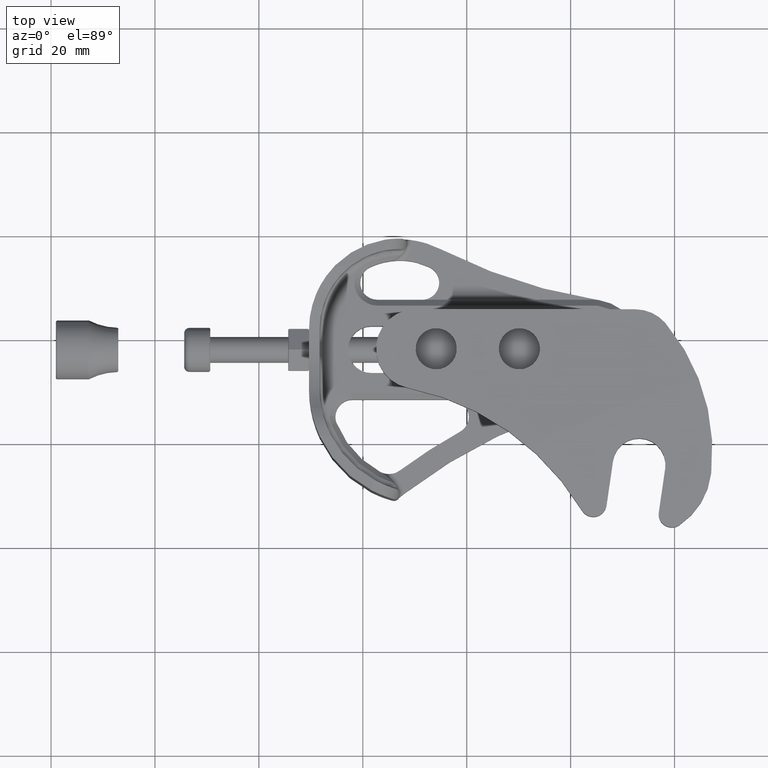
[diagram: clean part render]
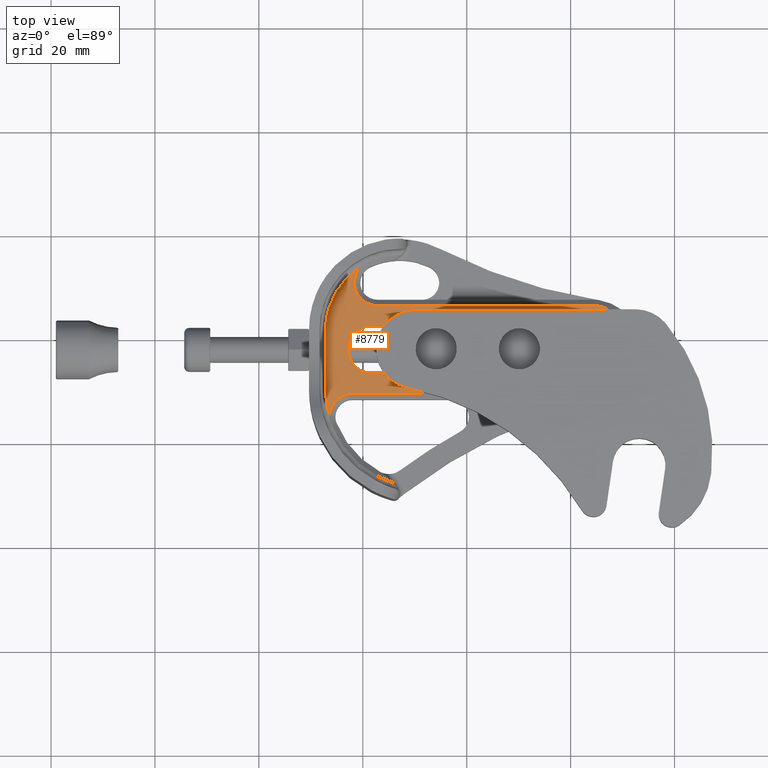
[diagram: same view with one face highlighted and labeled with its STEP entity id]
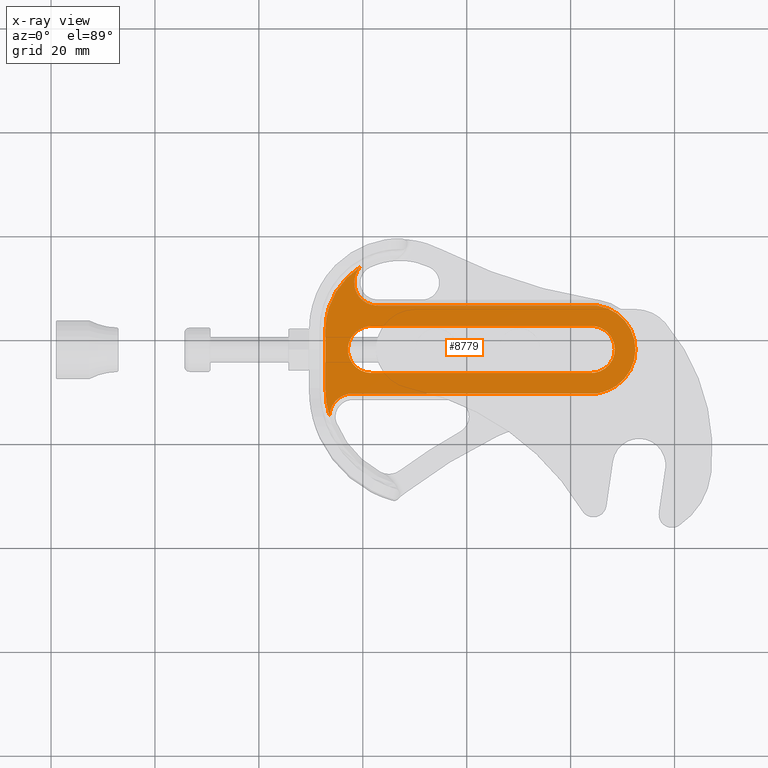
[diagram: x-ray of the same camera — body ghosted, the highlighted face saturated]
A machine part, top view. The second image highlights one B-rep face of the part: STEP entity #8779.
The next image is the same camera in x-ray: the body ghosted, the highlighted face saturated — about 0% of this face is hidden behind the body in this view.
In plain terms, the highlighted planar face has unit normal (0, 0, 1).
Its self-contained STEP definition (entity closure, byte-faithful):
#521 = EDGE_LOOP ( 'NONE', ( #4981, #4983, #4985, #4987, #4990, #4991, #4993, #4995, #4997, #4999 ) ) ;
#572 = EDGE_CURVE ( 'NONE', #1851, #1849, #1130, .T. ) ;
#792 = EDGE_CURVE ( 'NONE', #7277, #7278, #1935, .T. ) ;
#1128 = VECTOR ( 'NONE', #7846, 39.37007874015748100 ) ;
#1130 = LINE ( 'NONE', #7845, #1128 ) ;
#1234 = VERTEX_POINT ( 'NONE', #8289 ) ;
#1236 = VERTEX_POINT ( 'NONE', #8290 ) ;
#1237 = VERTEX_POINT ( 'NONE', #8288 ) ;
#1503 = EDGE_CURVE ( 'NONE', #1657, #1234, #1970, .T. ) ;
#1509 = EDGE_CURVE ( 'NONE', #1237, #7302, #1971, .T. ) ;
#1511 = EDGE_CURVE ( 'NONE', #1236, #1657, #3503, .T. ) ;
#1535 = EDGE_CURVE ( 'NONE', #7278, #1832, #1986, .T. ) ;
#1536 = EDGE_CURVE ( 'NONE', #1824, #1236, #1987, .T. ) ;
#1544 = EDGE_CURVE ( 'NONE', #7302, #1834, #3521, .T. ) ;
#1562 = EDGE_CURVE ( 'NONE', #1845, #7277, #3535, .T. ) ;
#1566 = EDGE_CURVE ( 'NONE', #1832, #1848, #3542, .T. ) ;
#1567 = EDGE_CURVE ( 'NONE', #1848, #1845, #2006, .T. ) ;
#1568 = EDGE_CURVE ( 'NONE', #1849, #1237, #9756, .T. ) ;
#1569 = EDGE_CURVE ( 'NONE', #1834, #1847, #9757, .T. ) ;
#1570 = EDGE_CURVE ( 'NONE', #1824, #1847, #9758, .T. ) ;
#1571 = EDGE_CURVE ( 'NONE', #1234, #1851, #9759, .T. ) ;
#1657 = VERTEX_POINT ( 'NONE', #9731 ) ;
#1796 = EDGE_LOOP ( 'NONE', ( #4973, #4975, #4977, #4979, #4980 ) ) ;
#1824 = VERTEX_POINT ( 'NONE', #9857 ) ;
#1832 = VERTEX_POINT ( 'NONE', #9865 ) ;
#1834 = VERTEX_POINT ( 'NONE', #9867 ) ;
#1845 = VERTEX_POINT ( 'NONE', #9878 ) ;
#1847 = VERTEX_POINT ( 'NONE', #9880 ) ;
#1848 = VERTEX_POINT ( 'NONE', #9881 ) ;
#1849 = VERTEX_POINT ( 'NONE', #9882 ) ;
#1851 = VERTEX_POINT ( 'NONE', #3773 ) ;
#1935 = B_SPLINE_CURVE_WITH_KNOTS ( 'NONE', 3,
 ( #2247, #2246, #2235, #2249, #2250, #2251, #2252, #2253, #2254, #2255, #2256, #2257, #2258, #2259, #2260, #2261, #2262, #2263, #2264, #2265, #2266, #2267, #2268, #2269, #2270, #2271, #2272, #2273, #2274, #2275 ),
 .UNSPECIFIED., .F., .F.,
 ( 4, 1, 1, 1, 2, 2, 1, 2, 2, 2, 1, 2, 2, 1, 1, 1, 2, 2, 4 ),
 ( 0.0000000000000000000, 0.06249999999999966700, 0.09374999999999952800, 0.1093749999999987200, 0.1171874999999982900, 0.1249999999999978600, 0.1562499999999974500, 0.1718749999999972000, 0.1874999999999969500, 0.2499999999999957800, 0.2812499999999951700, 0.2968749999999953400, 0.3124999999999954500, 0.3437499999999956700, 0.3593749999999958400, 0.3671874999999958900, 0.3710937499999958900, 0.3749999999999959500, 0.5000000000000000000 ),
 .UNSPECIFIED. ) ;
#1970 = B_SPLINE_CURVE_WITH_KNOTS ( 'NONE', 3,
 ( #7624, #7623, #7628, #7629, #7630, #7631, #7632, #7633, #7634, #7635, #7636, #7637, #7638, #7639, #7640, #7641, #7642, #7643, #7644, #7645, #7646, #7647, #7648, #7649, #7650, #7651, #7652, #7653, #7654, #7655, #7656, #7657, #8358, #8382, #8383, #8384, #8385 ),
 .UNSPECIFIED., .F., .F.,
 ( 4, 1, 1, 1, 2, 2, 2, 1, 1, 1, 2, 2, 2, 1, 1, 2, 2, 2, 1, 1, 1, 2, 2, 4 ),
 ( 0.0000000000000000000, 0.06250000000000072200, 0.09375000000000108200, 0.1093750000000013200, 0.1171875000000014400, 0.1250000000000015500, 0.2500000000000051100, 0.3125000000000068800, 0.3437500000000081600, 0.3593750000000087700, 0.3671875000000087200, 0.3750000000000087200, 0.5000000000000077700, 0.5625000000000076600, 0.5937500000000076600, 0.6093750000000076600, 0.6250000000000077700, 0.7500000000000058800, 0.8125000000000048800, 0.8437500000000043300, 0.8593750000000040000, 0.8671875000000038900, 0.8750000000000037700, 1.000000000000000000 ),
 .UNSPECIFIED. ) ;
#1971 = B_SPLINE_CURVE_WITH_KNOTS ( 'NONE', 3,
 ( #8399, #8394, #8401, #8402, #8403, #8404, #8405, #8406, #8407, #8408, #8409, #8410, #8411, #8412, #8413, #8414, #8415, #8416, #8417, #8418, #8419, #8420, #8421, #8422, #8423, #8424, #8425, #8426, #8427 ),
 .UNSPECIFIED., .F., .F.,
 ( 4, 1, 1, 1, 2, 2, 1, 2, 2, 2, 1, 2, 2, 1, 1, 2, 2, 4 ),
 ( 0.0000000000000000000, 0.1249999999999975300, 0.1874999999999967200, 0.2187499999999963900, 0.2343749999999962300, 0.2499999999999960600, 0.3124999999999953900, 0.3437499999999954500, 0.3749999999999954500, 0.4999999999999955600, 0.5624999999999957800, 0.5937499999999957800, 0.6249999999999958900, 0.6874999999999960000, 0.7187499999999960000, 0.7343749999999960000, 0.7499999999999960000, 1.000000000000000000 ),
 .UNSPECIFIED. ) ;
#1986 = B_SPLINE_CURVE_WITH_KNOTS ( 'NONE', 3,
 ( #9481, #9480, #9484, #9485, #9486, #9487, #9488, #9489, #9490, #9491, #9492, #9493, #9494, #9495, #9496, #9497, #9498, #9499, #9500, #9501, #9502, #9503, #9504, #9505, #9506, #9507, #9508, #9509, #9510, #9511 ),
 .UNSPECIFIED., .F., .F.,
 ( 4, 1, 1, 1, 2, 2, 1, 2, 2, 2, 1, 2, 2, 1, 1, 1, 2, 2, 4 ),
 ( 0.5000000000000000000, 0.5624999999999978900, 0.5937499999999966700, 0.6093749999999957800, 0.6171874999999951200, 0.6249999999999944500, 0.6562499999999924500, 0.6718749999999913400, 0.6874999999999902300, 0.7499999999999864600, 0.7812499999999842300, 0.7968749999999835700, 0.8124999999999830100, 0.8437499999999817900, 0.8593749999999811300, 0.8671874999999815700, 0.8710937499999816800, 0.8749999999999817900, 1.000000000000000000 ),
 .UNSPECIFIED. ) ;
#1987 = B_SPLINE_CURVE_WITH_KNOTS ( 'NONE', 3,
 ( #8513, #9482, #9513, #9514 ),
 .UNSPECIFIED., .F., .F.,
 ( 4, 4 ),
 ( 0.0000000000000000000, 1.000000000000000000 ),
 .UNSPECIFIED. ) ;
#2006 = B_SPLINE_CURVE_WITH_KNOTS ( 'NONE', 3,
 ( #9646, #9627, #9629, #9648, #9649, #9650, #9651, #9652, #9653, #9654, #9655, #9656, #9657, #9658, #9659, #9660, #9661, #9662, #9663, #9664, #9665, #9666, #9667, #9668, #9669, #9670, #9671, #9672, #9673, #9674, #9675, #9676, #9677, #9678, #9679, #9680, #9681, #9682, #9683, #9684, #9685, #9686, #9687, #9688, #9689, #9690, #9691, #9692, #9693, #9694, #9695, #9696, #9697, #9698, #9699, #9700, #9701, #9702 ),
 .UNSPECIFIED., .F., .F.,
 ( 4, 1, 1, 1, 2, 2, 1, 2, 2, 2, 1, 2, 2, 1, 1, 1, 2, 2, 2, 1, 1, 1, 2, 2, 1, 2, 2, 2, 1, 2, 2, 1, 1, 1, 2, 2, 4 ),
 ( 0.0000000000000000000, 0.06249999999999809900, 0.09374999999999716900, 0.1093749999999967100, 0.1171874999999966300, 0.1249999999999965600, 0.1562499999999965000, 0.1718749999999964200, 0.1874999999999963600, 0.2499999999999961100, 0.2812499999999957800, 0.2968749999999957300, 0.3124999999999957300, 0.3437499999999956100, 0.3593749999999954500, 0.3671874999999953900, 0.3710937499999953900, 0.3749999999999953400, 0.4999999999999985600, 0.5625000000000001100, 0.5937500000000008900, 0.6093750000000013300, 0.6171875000000015500, 0.6250000000000017800, 0.6562500000000025500, 0.6718750000000028900, 0.6875000000000032200, 0.7500000000000044400, 0.7812500000000050000, 0.7968750000000053300, 0.8125000000000055500, 0.8437500000000062200, 0.8593750000000065500, 0.8671875000000065500, 0.8710937500000065500, 0.8750000000000065500, 1.000000000000000000 ),
 .UNSPECIFIED. ) ;
#2235 = CARTESIAN_POINT ( 'NONE',  ( 2.167001245794842200, 0.1764331418381468700, 0.1769999999999999900 ) ) ;
#2246 = CARTESIAN_POINT ( 'NONE',  ( 2.150320650575481300, 0.1779973440797189800, 0.1769999999999999600 ) ) ;
#2247 = CARTESIAN_POINT ( 'NONE',  ( 2.138999999999999300, 0.1780000000000000500, 0.1769999999999999900 ) ) ;
#2249 = CARTESIAN_POINT ( 'NONE',  ( 2.185936274090681600, 0.1718778570909673700, 0.1770000000000000200 ) ) ;
#2250 = CARTESIAN_POINT ( 'NONE',  ( 2.195272371706910300, 0.1689176191843742600, 0.1770000000000000200 ) ) ;
#2251 = CARTESIAN_POINT ( 'NONE',  ( 2.199245395714219500, 0.1675026753244767400, 0.1769999999999999900 ) ) ;
#2252 = CARTESIAN_POINT ( 'NONE',  ( 2.201887820455677800, 0.1665268748686876100, 0.1770000000000000200 ) ) ;
#2253 = CARTESIAN_POINT ( 'NONE',  ( 2.203124188518036200, 0.1660550619315199200, 0.1769999999999999600 ) ) ;
#2254 = CARTESIAN_POINT ( 'NONE',  ( 2.210107537437923300, 0.1632913402194819400, 0.1770000000000000200 ) ) ;
#2255 = CARTESIAN_POINT ( 'NONE',  ( 2.218282856514925100, 0.1595684676182351200, 0.1769999999999999900 ) ) ;
#2256 = CARTESIAN_POINT ( 'NONE',  ( 2.226151126151627600, 0.1552359851967862700, 0.1769999999999999900 ) ) ;
#2257 = CARTESIAN_POINT ( 'NONE',  ( 2.231328406033807900, 0.1522121947335533500, 0.1769999999999999900 ) ) ;
#2258 = CARTESIAN_POINT ( 'NONE',  ( 2.233834759673953000, 0.1506640492925842600, 0.1769999999999999900 ) ) ;
#2259 = CARTESIAN_POINT ( 'NONE',  ( 2.246677641816960900, 0.1422698078142629900, 0.1770000000000000200 ) ) ;
#2260 = CARTESIAN_POINT ( 'NONE',  ( 2.256184748129170800, 0.1345431985718737700, 0.1769999999999999900 ) ) ;
#2261 = CARTESIAN_POINT ( 'NONE',  ( 2.269205136512221900, 0.1215259112908712000, 0.1769999999999999900 ) ) ;
#2262 = CARTESIAN_POINT ( 'NONE',  ( 2.275350257851197300, 0.1147138806020396700, 0.1770000000000000200 ) ) ;
#2263 = CARTESIAN_POINT ( 'NONE',  ( 2.280947769911351800, 0.1074467693407118600, 0.1769999999999999900 ) ) ;
#2264 = CARTESIAN_POINT ( 'NONE',  ( 2.284557753667270800, 0.1025008994837165600, 0.1769999999999999900 ) ) ;
#2265 = CARTESIAN_POINT ( 'NONE',  ( 2.286341009937441700, 0.09991759416306236800, 0.1769999999999999900 ) ) ;
#2266 = CARTESIAN_POINT ( 'NONE',  ( 2.291273583115872800, 0.09237481998154181700, 0.1770000000000000200 ) ) ;
#2267 = CARTESIAN_POINT ( 'NONE',  ( 2.295804509279111300, 0.08461812316571390400, 0.1770000000000000200 ) ) ;
#2268 = CARTESIAN_POINT ( 'NONE',  ( 2.300387707526308800, 0.07519427893720967400, 0.1769999999999999900 ) ) ;
#2269 = CARTESIAN_POINT ( 'NONE',  ( 2.302503586080760100, 0.07038876567044755100, 0.1769999999999999900 ) ) ;
#2270 = CARTESIAN_POINT ( 'NONE',  ( 2.303372736767850700, 0.06830920473772640600, 0.1769999999999999900 ) ) ;
#2271 = CARTESIAN_POINT ( 'NONE',  ( 2.303943802913094500, 0.06691837406103078000, 0.1769999999999999600 ) ) ;
#2272 = CARTESIAN_POINT ( 'NONE',  ( 2.304242032229943100, 0.06617810640399342200, 0.1769999999999999900 ) ) ;
#2273 = CARTESIAN_POINT ( 'NONE',  ( 2.312831449082569000, 0.04448891903864745500, 0.1770000000000000500 ) ) ;
#2274 = CARTESIAN_POINT ( 'NONE',  ( 2.316997346440551600, 0.02262117424356567200, 0.1770000000000000200 ) ) ;
#2275 = CARTESIAN_POINT ( 'NONE',  ( 2.316999999999999700, -2.179871302482288500E-017, 0.1769999999999999900 ) ) ;
#3503 = LINE ( 'NONE', #8432, #3505 ) ;
#3505 = VECTOR ( 'NONE', #8433, 39.37007874015748100 ) ;
#3520 = VECTOR ( 'NONE', #9541, 39.37007874015748100 ) ;
#3521 = LINE ( 'NONE', #9540, #3520 ) ;
#3535 = LINE ( 'NONE', #9635, #3537 ) ;
#3537 = VECTOR ( 'NONE', #9636, 39.37007874015748100 ) ;
#3542 = LINE ( 'NONE', #9643, #3545 ) ;
#3545 = VECTOR ( 'NONE', #9644, 39.37007874015748100 ) ;
#3773 = CARTESIAN_POINT ( 'NONE',  ( 0.1249999968546778900, 0.1482960013503854800, 0.1770000000000008000 ) ) ;
#4755 = FACE_BOUND ( 'NONE', #1796, .T. ) ;
#4760 = FACE_OUTER_BOUND ( 'NONE', #521, .T. ) ;
#4881 = AXIS2_PLACEMENT_3D ( 'NONE', #5962, #5959, #5966 ) ;
#4973 = ORIENTED_EDGE ( 'NONE', *, *, #1567, .T. ) ;
#4975 = ORIENTED_EDGE ( 'NONE', *, *, #1562, .T. ) ;
#4977 = ORIENTED_EDGE ( 'NONE', *, *, #792, .T. ) ;
#4979 = ORIENTED_EDGE ( 'NONE', *, *, #1535, .T. ) ;
#4980 = ORIENTED_EDGE ( 'NONE', *, *, #1566, .T. ) ;
#4981 = ORIENTED_EDGE ( 'NONE', *, *, #1568, .T. ) ;
#4983 = ORIENTED_EDGE ( 'NONE', *, *, #1509, .T. ) ;
#4985 = ORIENTED_EDGE ( 'NONE', *, *, #1544, .T. ) ;
#4987 = ORIENTED_EDGE ( 'NONE', *, *, #1569, .T. ) ;
#4990 = ORIENTED_EDGE ( 'NONE', *, *, #1570, .F. ) ;
#4991 = ORIENTED_EDGE ( 'NONE', *, *, #1536, .T. ) ;
#4993 = ORIENTED_EDGE ( 'NONE', *, *, #1511, .T. ) ;
#4995 = ORIENTED_EDGE ( 'NONE', *, *, #1503, .T. ) ;
#4997 = ORIENTED_EDGE ( 'NONE', *, *, #1571, .T. ) ;
#4999 = ORIENTED_EDGE ( 'NONE', *, *, #572, .T. ) ;
#5328 = CARTESIAN_POINT ( 'NONE',  ( 2.138999999999999300, 0.1780000000000000500, 0.1769999999999999900 ) ) ;
#5329 = CARTESIAN_POINT ( 'NONE',  ( 2.316999999999999700, -2.179871302482288500E-017, 0.1769999999999999900 ) ) ;
#5352 = CARTESIAN_POINT ( 'NONE',  ( 0.3301550000000001400, -0.3329999999998231000, 0.1770000000003180400 ) ) ;
#5959 = DIRECTION ( 'NONE',  ( 0.0000000000000000000, 0.0000000000000000000, 1.000000000000000000 ) ) ;
#5962 = CARTESIAN_POINT ( 'NONE',  ( -7.710999999999999400, -4.462636479999999600, 0.1769999999999999900 ) ) ;
#5964 = PLANE ( 'NONE',  #4881 ) ;
#5966 = DIRECTION ( 'NONE',  ( 1.000000000000000000, 0.0000000000000000000, -0.0000000000000000000 ) ) ;
#7277 = VERTEX_POINT ( 'NONE', #5328 ) ;
#7278 = VERTEX_POINT ( 'NONE', #5329 ) ;
#7302 = VERTEX_POINT ( 'NONE', #5352 ) ;
#7623 = CARTESIAN_POINT ( 'NONE',  ( 0.5100775570404181300, 0.3330018735933063000, 0.1769999999999999900 ) ) ;
#7624 = CARTESIAN_POINT ( 'NONE',  ( 0.5183269998545749800, 0.3330000027806545000, 0.1769999996020564000 ) ) ;
#7628 = CARTESIAN_POINT ( 'NONE',  ( 0.4978267504636599300, 0.3338605012522088400, 0.1770000000000000500 ) ) ;
#7629 = CARTESIAN_POINT ( 'NONE',  ( 0.4837500190503493100, 0.3363599220809389000, 0.1769999999999999900 ) ) ;
#7630 = CARTESIAN_POINT ( 'NONE',  ( 0.4767656224085855500, 0.3379840546353072800, 0.1769999999999999900 ) ) ;
#7631 = CARTESIAN_POINT ( 'NONE',  ( 0.4737838743617370200, 0.3387603447600368600, 0.1769999999999999900 ) ) ;
#7632 = CARTESIAN_POINT ( 'NONE',  ( 0.4717986122859753100, 0.3392957011355711100, 0.1770000000000000200 ) ) ;
#7633 = CARTESIAN_POINT ( 'NONE',  ( 0.4708499556400607700, 0.3395599836216902100, 0.1769999999999999600 ) ) ;
#7634 = CARTESIAN_POINT ( 'NONE',  ( 0.4532931971971754200, 0.3446228951974610900, 0.1770000000000000500 ) ) ;
#7635 = CARTESIAN_POINT ( 'NONE',  ( 0.4377748154920643700, 0.3516944885178625600, 0.1769999999999999900 ) ) ;
#7636 = CARTESIAN_POINT ( 'NONE',  ( 0.4161087482758625300, 0.3656950277205885400, 0.1770000000000000500 ) ) ;
#7637 = CARTESIAN_POINT ( 'NONE',  ( 0.4058931073798384100, 0.3734066639987422800, 0.1769999999999999600 ) ) ;
#7638 = CARTESIAN_POINT ( 'NONE',  ( 0.3950552969139476400, 0.3836484646743060800, 0.1770000000000000200 ) ) ;
#7639 = CARTESIAN_POINT ( 'NONE',  ( 0.3899065009925332700, 0.3890805879331835600, 0.1769999999999999900 ) ) ;
#7640 = CARTESIAN_POINT ( 'NONE',  ( 0.3877577547358292400, 0.3914753313843659100, 0.1769999999999999600 ) ) ;
#7641 = CARTESIAN_POINT ( 'NONE',  ( 0.3863381195795275200, 0.3930866471575875100, 0.1769999999999999900 ) ) ;
#7642 = CARTESIAN_POINT ( 'NONE',  ( 0.3856045830684585700, 0.3939352087856571300, 0.1769999999999999900 ) ) ;
#7643 = CARTESIAN_POINT ( 'NONE',  ( 0.3742688959777923400, 0.4072799428002856200, 0.1770000000000000200 ) ) ;
#7644 = CARTESIAN_POINT ( 'NONE',  ( 0.3655330595548533800, 0.4211096728283741400, 0.1769999999999999600 ) ) ;
#7645 = CARTESIAN_POINT ( 'NONE',  ( 0.3553793613625259000, 0.4436471732294844400, 0.1769999999999999900 ) ) ;
#7646 = CARTESIAN_POINT ( 'NONE',  ( 0.3511324218187517600, 0.4551624126437900900, 0.1770000000000000200 ) ) ;
#7647 = CARTESIAN_POINT ( 'NONE',  ( 0.3476300007343675600, 0.4690282147512113100, 0.1769999999999999900 ) ) ;
#7648 = CARTESIAN_POINT ( 'NONE',  ( 0.3464401792089191200, 0.4750631348238330000, 0.1769999999999999600 ) ) ;
#7649 = CARTESIAN_POINT ( 'NONE',  ( 0.3457161239879866200, 0.4791069556400607800, 0.1769999999999999900 ) ) ;
#7650 = CARTESIAN_POINT ( 'NONE',  ( 0.3454009291797519000, 0.4810536829229006800, 0.1770000000000000200 ) ) ;
#7651 = CARTESIAN_POINT ( 'NONE',  ( 0.3426548337119186300, 0.5002048250888645500, 0.1769999999999999900 ) ) ;
#7652 = CARTESIAN_POINT ( 'NONE',  ( 0.3427298706244681900, 0.5172583288676465600, 0.1769999999999999600 ) ) ;
#7653 = CARTESIAN_POINT ( 'NONE',  ( 0.3465980410115940800, 0.5427626593041231500, 0.1769999999999999900 ) ) ;
#7654 = CARTESIAN_POINT ( 'NONE',  ( 0.3494342803342628300, 0.5552440218407083100, 0.1769999999999999900 ) ) ;
#7655 = CARTESIAN_POINT ( 'NONE',  ( 0.3543219959366444800, 0.5693317067738320500, 0.1769999999999999900 ) ) ;
#7656 = CARTESIAN_POINT ( 'NONE',  ( 0.3571605461693194700, 0.5762570730671707800, 0.1769999999999999900 ) ) ;
#7657 = CARTESIAN_POINT ( 'NONE',  ( 0.3584616446472115900, 0.5791996994414817500, 0.1769999999999999600 ) ) ;
#7845 = CARTESIAN_POINT ( 'NONE',  ( 0.1249999999959321000, -0.2966962268278999800, 0.1770000000000000200 ) ) ;
#7846 = DIRECTION ( 'NONE',  ( -2.400643935218000100E-009, -1.000000000000000000, -0.0000000000000000000 ) ) ;
#8288 = CARTESIAN_POINT ( 'NONE',  ( 0.1551715554614134000, -0.5055875747674281100, 0.1769999511813786000 ) ) ;
#8289 = CARTESIAN_POINT ( 'NONE',  ( 0.3872749557713980900, 0.6239757259810978500, 0.1769999847769869200 ) ) ;
#8290 = CARTESIAN_POINT ( 'NONE',  ( 2.177807873118019700, 0.3330000409035151500, 0.1769999954553159200 ) ) ;
#8358 = CARTESIAN_POINT ( 'NONE',  ( 0.3593478385101631600, 0.5811558086351551500, 0.1770000000000000200 ) ) ;
#8382 = CARTESIAN_POINT ( 'NONE',  ( 0.3598204953005012000, 0.5821734899664856600, 0.1769999999999999900 ) ) ;
#8383 = CARTESIAN_POINT ( 'NONE',  ( 0.3673298949160450100, 0.5979828997016933800, 0.1770000000000000500 ) ) ;
#8384 = CARTESIAN_POINT ( 'NONE',  ( 0.3763341400951617000, 0.6116069869791844700, 0.1770000000000000200 ) ) ;
#8385 = CARTESIAN_POINT ( 'NONE',  ( 0.3872749557713980900, 0.6239757259810978500, 0.1769999847769869200 ) ) ;
#8394 = CARTESIAN_POINT ( 'NONE',  ( 0.1553264224783017000, -0.4945501296368796100, 0.1770000000000000200 ) ) ;
#8399 = CARTESIAN_POINT ( 'NONE',  ( 0.1551715554614134000, -0.5055875747674281100, 0.1769999511813786000 ) ) ;
#8401 = CARTESIAN_POINT ( 'NONE',  ( 0.1570641647325717300, -0.4783031413095401600, 0.1769999999999999900 ) ) ;
#8402 = CARTESIAN_POINT ( 'NONE',  ( 0.1617261681066561900, -0.4598893707182105100, 0.1770000000000000200 ) ) ;
#8403 = CARTESIAN_POINT ( 'NONE',  ( 0.1647158291463889400, -0.4508177477035189600, 0.1769999999999999900 ) ) ;
#8404 = CARTESIAN_POINT ( 'NONE',  ( 0.1661382537389941000, -0.4469588940431465900, 0.1769999999999999900 ) ) ;
#8405 = CARTESIAN_POINT ( 'NONE',  ( 0.1671179015318117500, -0.4443927659972299300, 0.1770000000000000500 ) ) ;
#8406 = CARTESIAN_POINT ( 'NONE',  ( 0.1675916554707311800, -0.4431906980787930200, 0.1769999999999999900 ) ) ;
#8407 = CARTESIAN_POINT ( 'NONE',  ( 0.1703563602233333900, -0.4364187053988843300, 0.1770000000000000200 ) ) ;
#8408 = CARTESIAN_POINT ( 'NONE',  ( 0.1740643144281765200, -0.4284935065187854800, 0.1770000000000000200 ) ) ;
#8409 = CARTESIAN_POINT ( 'NONE',  ( 0.1783577313855989100, -0.4208700961423747500, 0.1770000000000000200 ) ) ;
#8410 = CARTESIAN_POINT ( 'NONE',  ( 0.1813501121911209900, -0.4158548866700315100, 0.1770000000000000200 ) ) ;
#8411 = CARTESIAN_POINT ( 'NONE',  ( 0.1828810655716069400, -0.4134262671496343200, 0.1769999999999999900 ) ) ;
#8412 = CARTESIAN_POINT ( 'NONE',  ( 0.1911639739510900300, -0.4009962982293839900, 0.1769999999999999900 ) ) ;
#8413 = CARTESIAN_POINT ( 'NONE',  ( 0.1987605842130693600, -0.3917984837729466800, 0.1769999999999999600 ) ) ;
#8414 = CARTESIAN_POINT ( 'NONE',  ( 0.2115204890537425400, -0.3792102224733573400, 0.1769999999999999900 ) ) ;
#8415 = CARTESIAN_POINT ( 'NONE',  ( 0.2181910509181482500, -0.3732696807532583900, 0.1769999999999999900 ) ) ;
#8416 = CARTESIAN_POINT ( 'NONE',  ( 0.2252975269486574600, -0.3678595224277044200, 0.1770000000000000200 ) ) ;
#8417 = CARTESIAN_POINT ( 'NONE',  ( 0.2301320474503536200, -0.3643706131872334600, 0.1769999999999999600 ) ) ;
#8418 = CARTESIAN_POINT ( 'NONE',  ( 0.2326553329748874400, -0.3626478302452457700, 0.1769999999999999900 ) ) ;
#8419 = CARTESIAN_POINT ( 'NONE',  ( 0.2400249520724803400, -0.3578798347443401500, 0.1770000000000000200 ) ) ;
#8420 = CARTESIAN_POINT ( 'NONE',  ( 0.2475996461878775800, -0.3535001399638645300, 0.1770000000000000200 ) ) ;
#8421 = CARTESIAN_POINT ( 'NONE',  ( 0.2567956706036675400, -0.3490700223140605900, 0.1769999999999999900 ) ) ;
#8422 = CARTESIAN_POINT ( 'NONE',  ( 0.2608137270563945500, -0.3473170132343050800, 0.1769999999999999900 ) ) ;
#8423 = CARTESIAN_POINT ( 'NONE',  ( 0.2635095209430307600, -0.3461806989078375400, 0.1769999999999999900 ) ) ;
#8424 = CARTESIAN_POINT ( 'NONE',  ( 0.2649481442081144700, -0.3455964621889653400, 0.1770000000000000200 ) ) ;
#8425 = CARTESIAN_POINT ( 'NONE',  ( 0.2867558291873346100, -0.3370362818907572900, 0.1770000000000000200 ) ) ;
#8426 = CARTESIAN_POINT ( 'NONE',  ( 0.3080638461183709500, -0.3330053078336160400, 0.1770000000000000200 ) ) ;
#8427 = CARTESIAN_POINT ( 'NONE',  ( 0.3301550000000001400, -0.3329999999998231000, 0.1770000000003180400 ) ) ;
#8432 = CARTESIAN_POINT ( 'NONE',  ( -7.710999999999999400, 0.3330000454482000500, 0.1769999999999999900 ) ) ;
#8433 = DIRECTION ( 'NONE',  ( -1.000000000000000000, -0.0000000000000000000, 0.0000000000000000000 ) ) ;
#8513 = CARTESIAN_POINT ( 'NONE',  ( 2.190197136019008000, 0.3310634066792069700, 0.1770003388696651800 ) ) ;
#8779 = ADVANCED_FACE ( 'NONE', ( #4755, #4760 ), #5964, .T. ) ;
#9480 = CARTESIAN_POINT ( 'NONE',  ( 2.317001326779724000, -0.01131058712178288800, 0.1769999999999999600 ) ) ;
#9481 = CARTESIAN_POINT ( 'NONE',  ( 2.316999999999999700, -2.179871302482288500E-017, 0.1769999999999999900 ) ) ;
#9482 = CARTESIAN_POINT ( 'NONE',  ( 2.186067346132659400, 0.3317087227961343900, 0.1769999999999999900 ) ) ;
#9484 = CARTESIAN_POINT ( 'NONE',  ( 2.315440111563155800, -0.02798363475087155600, 0.1770000000000000200 ) ) ;
#9485 = CARTESIAN_POINT ( 'NONE',  ( 2.310883084384723700, -0.04692306580770083000, 0.1769999999999999900 ) ) ;
#9486 = CARTESIAN_POINT ( 'NONE',  ( 2.307920668439066100, -0.05626466687517164800, 0.1769999999999999600 ) ) ;
#9487 = CARTESIAN_POINT ( 'NONE',  ( 2.306504511100260700, -0.06024075709102813500, 0.1770000000000000200 ) ) ;
#9488 = CARTESIAN_POINT ( 'NONE',  ( 2.305527839428845200, -0.06288538321298292600, 0.1770000000000000200 ) ) ;
#9489 = CARTESIAN_POINT ( 'NONE',  ( 2.305055061931509100, -0.06412418851798343300, 0.1769999999999999600 ) ) ;
#9490 = CARTESIAN_POINT ( 'NONE',  ( 2.302291340219529700, -0.07110753743813248700, 0.1769999999999999900 ) ) ;
#9491 = CARTESIAN_POINT ( 'NONE',  ( 2.298568467618317300, -0.07928285651528946300, 0.1769999999999999900 ) ) ;
#9492 = CARTESIAN_POINT ( 'NONE',  ( 2.294235985196850300, -0.08715112615191489300, 0.1769999999999999900 ) ) ;
#9493 = CARTESIAN_POINT ( 'NONE',  ( 2.291212194733593500, -0.09232840603399077000, 0.1769999999999999600 ) ) ;
#9494 = CARTESIAN_POINT ( 'NONE',  ( 2.289664049292554600, -0.09483475967414055400, 0.1769999999999999900 ) ) ;
#9495 = CARTESIAN_POINT ( 'NONE',  ( 2.281269807814373600, -0.1076776418162152200, 0.1769999999999999900 ) ) ;
#9496 = CARTESIAN_POINT ( 'NONE',  ( 2.273543198569423700, -0.1171847481309885200, 0.1769999999999999600 ) ) ;
#9497 = CARTESIAN_POINT ( 'NONE',  ( 2.260525911292095500, -0.1302051365113137700, 0.1769999999999999900 ) ) ;
#9498 = CARTESIAN_POINT ( 'NONE',  ( 2.253713880604180500, -0.1363502578496092500, 0.1769999999999999900 ) ) ;
#9499 = CARTESIAN_POINT ( 'NONE',  ( 2.246446769342393100, -0.1419477699101045800, 0.1769999999999999100 ) ) ;
#9500 = CARTESIAN_POINT ( 'NONE',  ( 2.241500899484786500, -0.1455577536664791300, 0.1770000000000000500 ) ) ;
#9501 = CARTESIAN_POINT ( 'NONE',  ( 2.238917594163140700, -0.1473410099373386200, 0.1769999999999999900 ) ) ;
#9502 = CARTESIAN_POINT ( 'NONE',  ( 2.231374819981383900, -0.1522735831160828000, 0.1770000000000000200 ) ) ;
#9503 = CARTESIAN_POINT ( 'NONE',  ( 2.223618123165436200, -0.1568045092794784200, 0.1769999999999999600 ) ) ;
#9504 = CARTESIAN_POINT ( 'NONE',  ( 2.214194278937001000, -0.1613877075265825700, 0.1770000000000000200 ) ) ;
#9505 = CARTESIAN_POINT ( 'NONE',  ( 2.209388765670327300, -0.1635035860809183300, 0.1769999999999999900 ) ) ;
#9506 = CARTESIAN_POINT ( 'NONE',  ( 2.207309204737653000, -0.1643727367679450300, 0.1770000000000000200 ) ) ;
#9507 = CARTESIAN_POINT ( 'NONE',  ( 2.205918374060992000, -0.1649438029131431400, 0.1769999999999999900 ) ) ;
#9508 = CARTESIAN_POINT ( 'NONE',  ( 2.205177896634411500, -0.1652421153035366600, 0.1769999999999999900 ) ) ;
#9509 = CARTESIAN_POINT ( 'NONE',  ( 2.183495631665285600, -0.1738287907275372400, 0.1770000000000000500 ) ) ;
#9510 = CARTESIAN_POINT ( 'NONE',  ( 2.161655345564614400, -0.1779946848644997900, 0.1769999999999999900 ) ) ;
#9511 = CARTESIAN_POINT ( 'NONE',  ( 2.138999999999999300, -0.1780000000000000500, 0.1769999999999999900 ) ) ;
#9513 = CARTESIAN_POINT ( 'NONE',  ( 2.181937609625319600, 0.3323543841221686100, 0.1769999999999999900 ) ) ;
#9514 = CARTESIAN_POINT ( 'NONE',  ( 2.177807873118019700, 0.3330000409035151500, 0.1769999954553159200 ) ) ;
#9540 = CARTESIAN_POINT ( 'NONE',  ( -7.710999999999999400, -0.3329999999999999600, 0.1769999999999999900 ) ) ;
#9541 = DIRECTION ( 'NONE',  ( 1.000000000000000000, 0.0000000000000000000, -0.0000000000000000000 ) ) ;
#9627 = CARTESIAN_POINT ( 'NONE',  ( 0.4616793494245189400, -0.1779973440797188700, 0.1769999999999999900 ) ) ;
#9629 = CARTESIAN_POINT ( 'NONE',  ( 0.4449987542051575500, -0.1764331418381469300, 0.1770000000000000200 ) ) ;
#9635 = CARTESIAN_POINT ( 'NONE',  ( -7.710999999999999400, 0.1780000000000001300, 0.1769999999999999900 ) ) ;
#9636 = DIRECTION ( 'NONE',  ( 1.000000000000000000, 0.0000000000000000000, -0.0000000000000000000 ) ) ;
#9643 = CARTESIAN_POINT ( 'NONE',  ( -7.710999999999999400, -0.1780000000000001300, 0.1769999999999999900 ) ) ;
#9644 = DIRECTION ( 'NONE',  ( -1.000000000000000000, -0.0000000000000000000, 0.0000000000000000000 ) ) ;
#9645 = CARTESIAN_POINT ( 'NONE',  ( 0.1250000000000011700, -0.2949999981995141100, 0.1770000000000000200 ) ) ;
#9646 = CARTESIAN_POINT ( 'NONE',  ( 0.4730000000000000300, -0.1780000000000000500, 0.1769999999999999900 ) ) ;
#9647 = CARTESIAN_POINT ( 'NONE',  ( 0.1250020372636886100, -0.3306434440189648400, 0.1769999999999999900 ) ) ;
#9648 = CARTESIAN_POINT ( 'NONE',  ( 0.4260637259093206200, -0.1718778570909671500, 0.1769999999999999900 ) ) ;
#9649 = CARTESIAN_POINT ( 'NONE',  ( 0.4167276282930901800, -0.1689176191843741700, 0.1769999999999999900 ) ) ;
#9650 = CARTESIAN_POINT ( 'NONE',  ( 0.4127546042857833700, -0.1675026753244762100, 0.1769999999999999900 ) ) ;
#9651 = CARTESIAN_POINT ( 'NONE',  ( 0.4101121795443250500, -0.1665268748686871100, 0.1770000000000000700 ) ) ;
#9652 = CARTESIAN_POINT ( 'NONE',  ( 0.4088758114819646700, -0.1660550619315201400, 0.1770000000000000200 ) ) ;
#9653 = CARTESIAN_POINT ( 'NONE',  ( 0.4018924625620761700, -0.1632913402194816100, 0.1769999999999999600 ) ) ;
#9654 = CARTESIAN_POINT ( 'NONE',  ( 0.3937171434850747500, -0.1595684676182345100, 0.1769999999999999900 ) ) ;
#9655 = CARTESIAN_POINT ( 'NONE',  ( 0.3858488738483729100, -0.1552359851967856100, 0.1769999999999999900 ) ) ;
#9656 = CARTESIAN_POINT ( 'NONE',  ( 0.3806715939661926600, -0.1522121947335529900, 0.1770000000000000500 ) ) ;
#9657 = CARTESIAN_POINT ( 'NONE',  ( 0.3781652403258174400, -0.1506640492924347100, 0.1770000000000000200 ) ) ;
#9658 = CARTESIAN_POINT ( 'NONE',  ( 0.3653223581839534800, -0.1422698078148614300, 0.1769999999999999900 ) ) ;
#9659 = CARTESIAN_POINT ( 'NONE',  ( 0.3558152518693069000, -0.1345431985700368300, 0.1769999999999999900 ) ) ;
#9660 = CARTESIAN_POINT ( 'NONE',  ( 0.3427948634885386000, -0.1215259112917896200, 0.1769999999999999900 ) ) ;
#9661 = CARTESIAN_POINT ( 'NONE',  ( 0.3366497421501329400, -0.1147138806036465500, 0.1770000000000000200 ) ) ;
#9662 = CARTESIAN_POINT ( 'NONE',  ( 0.3310522300896930900, -0.1074467693419746500, 0.1769999999999999900 ) ) ;
#9663 = CARTESIAN_POINT ( 'NONE',  ( 0.3274422463333923600, -0.1025008994845201500, 0.1769999999999999900 ) ) ;
#9664 = CARTESIAN_POINT ( 'NONE',  ( 0.3256589900626407600, -0.09991759416307138800, 0.1769999999999999900 ) ) ;
#9665 = CARTESIAN_POINT ( 'NONE',  ( 0.3207264168839571400, -0.09237481998152379000, 0.1769999999999999900 ) ) ;
#9666 = CARTESIAN_POINT ( 'NONE',  ( 0.3161954907205912800, -0.08461812316568191600, 0.1769999999999999900 ) ) ;
#9667 = CARTESIAN_POINT ( 'NONE',  ( 0.3116122924734705000, -0.07519427893718612400, 0.1769999999999999900 ) ) ;
#9668 = CARTESIAN_POINT ( 'NONE',  ( 0.3094964139191115900, -0.07038876567043410300, 0.1770000000000000200 ) ) ;
#9669 = CARTESIAN_POINT ( 'NONE',  ( 0.3086272632320731800, -0.06830920473771845400, 0.1770000000000000200 ) ) ;
#9670 = CARTESIAN_POINT ( 'NONE',  ( 0.3080561970868662100, -0.06691837406102674200, 0.1769999999999999600 ) ) ;
#9671 = CARTESIAN_POINT ( 'NONE',  ( 0.3077579677700577600, -0.06617810640404149500, 0.1770000000000000200 ) ) ;
#9672 = CARTESIAN_POINT ( 'NONE',  ( 0.2991685509174324400, -0.04448891903710999700, 0.1770000000000000200 ) ) ;
#9673 = CARTESIAN_POINT ( 'NONE',  ( 0.2950026535594493200, -0.02262117424510172800, 0.1769999999999999900 ) ) ;
#9674 = CARTESIAN_POINT ( 'NONE',  ( 0.2949986732202753400, 0.01131058712255088100, 0.1769999999999999900 ) ) ;
#9675 = CARTESIAN_POINT ( 'NONE',  ( 0.2965598884368433900, 0.02798363475221544600, 0.1769999999999999900 ) ) ;
#9676 = CARTESIAN_POINT ( 'NONE',  ( 0.3011169156152757000, 0.04692306580870909300, 0.1769999999999999900 ) ) ;
#9677 = CARTESIAN_POINT ( 'NONE',  ( 0.3040793315609329700, 0.05626466687575909500, 0.1769999999999999900 ) ) ;
#9678 = CARTESIAN_POINT ( 'NONE',  ( 0.3054954888997398800, 0.06024075709138206800, 0.1769999999999999900 ) ) ;
#9679 = CARTESIAN_POINT ( 'NONE',  ( 0.3064721605711552800, 0.06288538321316883300, 0.1769999999999999900 ) ) ;
#9680 = CARTESIAN_POINT ( 'NONE',  ( 0.3069449380685090300, 0.06412418851813038400, 0.1769999999999999900 ) ) ;
#9681 = CARTESIAN_POINT ( 'NONE',  ( 0.3097086597803999600, 0.07110753743754480400, 0.1769999999999999900 ) ) ;
#9682 = CARTESIAN_POINT ( 'NONE',  ( 0.3134315323815590700, 0.07928285651426134100, 0.1769999999999999900 ) ) ;
#9683 = CARTESIAN_POINT ( 'NONE',  ( 0.3177640148030505500, 0.08715112615110631700, 0.1769999999999999900 ) ) ;
#9684 = CARTESIAN_POINT ( 'NONE',  ( 0.3207878052663424300, 0.09232840603347609900, 0.1769999999999999900 ) ) ;
#9685 = CARTESIAN_POINT ( 'NONE',  ( 0.3223359507079057700, 0.09483475967460303100, 0.1769999999999999900 ) ) ;
#9686 = CARTESIAN_POINT ( 'NONE',  ( 0.3307301921837751400, 0.1076776418143656100, 0.1770000000000000200 ) ) ;
#9687 = CARTESIAN_POINT ( 'NONE',  ( 0.3384568014305752700, 0.1171847481309885200, 0.1770000000000000200 ) ) ;
#9688 = CARTESIAN_POINT ( 'NONE',  ( 0.3514740887079044200, 0.1302051365113137700, 0.1769999999999999600 ) ) ;
#9689 = CARTESIAN_POINT ( 'NONE',  ( 0.3582861193958178900, 0.1363502578496091600, 0.1769999999999999600 ) ) ;
#9690 = CARTESIAN_POINT ( 'NONE',  ( 0.3655532306576054200, 0.1419477699101046000, 0.1769999999999999900 ) ) ;
#9691 = CARTESIAN_POINT ( 'NONE',  ( 0.3704991005152126800, 0.1455577536664790800, 0.1769999999999999600 ) ) ;
#9692 = CARTESIAN_POINT ( 'NONE',  ( 0.3730824058366103400, 0.1473410099371761900, 0.1769999999999999900 ) ) ;
#9693 = CARTESIAN_POINT ( 'NONE',  ( 0.3806251800191129400, 0.1522735831164075100, 0.1770000000000000200 ) ) ;
#9694 = CARTESIAN_POINT ( 'NONE',  ( 0.3883818768354317400, 0.1568045092800471600, 0.1769999999999999900 ) ) ;
#9695 = CARTESIAN_POINT ( 'NONE',  ( 0.3978057210636484200, 0.1613877075270079800, 0.1769999999999999600 ) ) ;
#9696 = CARTESIAN_POINT ( 'NONE',  ( 0.4026112343300542500, 0.1635035860811670800, 0.1770000000000000500 ) ) ;
#9697 = CARTESIAN_POINT ( 'NONE',  ( 0.4046907952625758400, 0.1643727367680953000, 0.1769999999999999900 ) ) ;
#9698 = CARTESIAN_POINT ( 'NONE',  ( 0.4060816259391282800, 0.1649438029132224100, 0.1770000000000000200 ) ) ;
#9699 = CARTESIAN_POINT ( 'NONE',  ( 0.4068221033655510800, 0.1652421153035365800, 0.1769999999999999600 ) ) ;
#9700 = CARTESIAN_POINT ( 'NONE',  ( 0.4285043683359308600, 0.1738287907275376000, 0.1769999999999999600 ) ) ;
#9701 = CARTESIAN_POINT ( 'NONE',  ( 0.4503446544366016500, 0.1779946848645000700, 0.1769999999999999600 ) ) ;
#9702 = CARTESIAN_POINT ( 'NONE',  ( 0.4730000000000001400, 0.1780000000000000500, 0.1769999999999999900 ) ) ;
#9703 = CARTESIAN_POINT ( 'NONE',  ( 2.187556571700003600, -0.3329999804477651900, 0.1769999796066856800 ) ) ;
#9704 = CARTESIAN_POINT ( 'NONE',  ( 2.197500916292844500, -0.3305665704963293100, 0.1769999999999999900 ) ) ;
#9705 = CARTESIAN_POINT ( 'NONE',  ( 0.1275311355405447400, -0.3661139199951856700, 0.1770000000000000200 ) ) ;
#9706 = CARTESIAN_POINT ( 'NONE',  ( 0.1376312969275410000, -0.4366240617949090400, 0.1769999999999999900 ) ) ;
#9707 = CARTESIAN_POINT ( 'NONE',  ( 0.1451614245284268100, -0.4713635878766932500, 0.1769999999999999900 ) ) ;
#9708 = CARTESIAN_POINT ( 'NONE',  ( 0.1551715554614134000, -0.5055875747674281100, 0.1769999511813786000 ) ) ;
#9709 = CARTESIAN_POINT ( 'NONE',  ( 2.228158825721035200, 0.3251924967420413700, 0.1770000280502194400 ) ) ;
#9710 = CARTESIAN_POINT ( 'NONE',  ( 2.190197136019008000, 0.3310634066792069700, 0.1770003388696651800 ) ) ;
#9711 = CARTESIAN_POINT ( 'NONE',  ( 2.207445305574922600, -0.3281331409926645500, 0.1769999999999999900 ) ) ;
#9712 = CARTESIAN_POINT ( 'NONE',  ( 2.217389774966390400, -0.3257000442487172900, 0.1770003293283234400 ) ) ;
#9713 = CARTESIAN_POINT ( 'NONE',  ( 0.3675194701420520500, 0.6115050149349269300, 0.1769999999999999600 ) ) ;
#9714 = CARTESIAN_POINT ( 'NONE',  ( 0.3872749557713980900, 0.6239757259810978500, 0.1769999847769869200 ) ) ;
#9715 = CARTESIAN_POINT ( 'NONE',  ( 2.265092186553900400, 0.3127303072696707200, 0.1770000561004821700 ) ) ;
#9716 = CARTESIAN_POINT ( 'NONE',  ( 2.332607895610053500, 0.2760716665785987200, 0.1770001122010075600 ) ) ;
#9717 = CARTESIAN_POINT ( 'NONE',  ( 2.363174575503717900, 0.2518837227674855500, 0.1770001402512703700 ) ) ;
#9718 = CARTESIAN_POINT ( 'NONE',  ( 2.414371595293884900, 0.1946029309953445400, 0.1770001963517958400 ) ) ;
#9719 = CARTESIAN_POINT ( 'NONE',  ( 2.434990053949005700, 0.1615233762085285000, 0.1770002244020586200 ) ) ;
#9720 = CARTESIAN_POINT ( 'NONE',  ( 2.463869561461250700, 0.09033211956801931500, 0.1770002805025840400 ) ) ;
#9721 = CARTESIAN_POINT ( 'NONE',  ( 2.472123908306114600, 0.05223693907169753300, 0.1770003085528467600 ) ) ;
#9722 = CARTESIAN_POINT ( 'NONE',  ( 2.475302059760380300, -0.02452318966911184700, 0.1770003646533721800 ) ) ;
#9723 = CARTESIAN_POINT ( 'NONE',  ( 2.470225126868824000, -0.06317032420678825300, 0.1770003927036350500 ) ) ;
#9724 = CARTESIAN_POINT ( 'NONE',  ( 2.447329546428624000, -0.1365052234161432700, 0.1770004488041604700 ) ) ;
#9725 = CARTESIAN_POINT ( 'NONE',  ( 2.429516212301413800, -0.1711759692908310100, 0.1770004768544231900 ) ) ;
#9726 = CARTESIAN_POINT ( 'NONE',  ( 2.383229622393345300, -0.2324928811112331500, 0.1770005329549486900 ) ) ;
#9727 = CARTESIAN_POINT ( 'NONE',  ( 2.354767108371751000, -0.2591248172872180900, 0.1770005610052113600 ) ) ;
#9728 = CARTESIAN_POINT ( 'NONE',  ( 2.290512989560477200, -0.3012391536949635700, 0.1770006171057368300 ) ) ;
#9729 = CARTESIAN_POINT ( 'NONE',  ( 2.254736296237202600, -0.3167117805062090200, 0.1770006451559996100 ) ) ;
#9730 = CARTESIAN_POINT ( 'NONE',  ( 2.217389774966390400, -0.3257000442487172900, 0.1770003293283234400 ) ) ;
#9731 = CARTESIAN_POINT ( 'NONE',  ( 0.5183269998545749800, 0.3330000027806545000, 0.1769999996020564000 ) ) ;
#9734 = CARTESIAN_POINT ( 'NONE',  ( 0.3392612378384125500, 0.5911268554869050200, 0.1770000000000000200 ) ) ;
#9735 = CARTESIAN_POINT ( 'NONE',  ( 0.3086995550924546100, 0.5644261502210996500, 0.1769999999999999900 ) ) ;
#9736 = CARTESIAN_POINT ( 'NONE',  ( 0.2940202774548813500, 0.5503442511107504700, 0.1770000000000000200 ) ) ;
#9737 = CARTESIAN_POINT ( 'NONE',  ( 0.2868310295699452700, 0.5431204149362136600, 0.1769999999999999900 ) ) ;
#9738 = CARTESIAN_POINT ( 'NONE',  ( 0.2837821499622252300, 0.5399852951572657900, 0.1769999999999999900 ) ) ;
#9739 = CARTESIAN_POINT ( 'NONE',  ( 0.2817567250301200000, 0.5378865064179964000, 0.1770000000000000200 ) ) ;
#9740 = CARTESIAN_POINT ( 'NONE',  ( 0.2807807874192433400, 0.5368676865199171200, 0.1769999999999999900 ) ) ;
#9741 = CARTESIAN_POINT ( 'NONE',  ( 0.2465021987342513600, 0.5007976248721026600, 0.1770000000000000200 ) ) ;
#9742 = CARTESIAN_POINT ( 'NONE',  ( 0.2182131232548498200, 0.4621469378491969100, 0.1770000000000000200 ) ) ;
#9743 = CARTESIAN_POINT ( 'NONE',  ( 0.1832637550508879300, 0.3987657732297448200, 0.1769999999999999900 ) ) ;
#9744 = CARTESIAN_POINT ( 'NONE',  ( 0.1679364151221607000, 0.3662222995892749900, 0.1769999999999999900 ) ) ;
#9745 = CARTESIAN_POINT ( 'NONE',  ( 0.1538123708418398200, 0.3267623538465925800, 0.1769999999999999900 ) ) ;
#9746 = CARTESIAN_POINT ( 'NONE',  ( 0.1476898117774773400, 0.3066592410180519800, 0.1769999999999999900 ) ) ;
#9747 = CARTESIAN_POINT ( 'NONE',  ( 0.1448633980142460000, 0.2965143996144808400, 0.1769999999999999900 ) ) ;
#9748 = CARTESIAN_POINT ( 'NONE',  ( 0.1437024062090645200, 0.2921466208009582700, 0.1769999999999999900 ) ) ;
#9749 = CARTESIAN_POINT ( 'NONE',  ( 0.1429395957565126100, 0.2892303261162619300, 0.1770000000000000200 ) ) ;
#9750 = CARTESIAN_POINT ( 'NONE',  ( 0.1425516531749343700, 0.2877220395070776400, 0.1769999999999999900 ) ) ;
#9751 = CARTESIAN_POINT ( 'NONE',  ( 0.1307346256024725400, 0.2410378869689622200, 0.1770000000000000200 ) ) ;
#9752 = CARTESIAN_POINT ( 'NONE',  ( 0.1250034388137675800, 0.1950340980130807800, 0.1769999999999999900 ) ) ;
#9753 = CARTESIAN_POINT ( 'NONE',  ( 0.1249999968546778900, 0.1482960013503854800, 0.1770000000000008000 ) ) ;
#9756 = B_SPLINE_CURVE_WITH_KNOTS ( 'NONE', 3,
 ( #9645, #9647, #9705, #9706, #9707, #9708 ),
 .UNSPECIFIED., .F., .F.,
 ( 4, 2, 4 ),
 ( 0.0000000000000000000, 0.5000000000000000000, 1.000000000000000000 ),
 .UNSPECIFIED. ) ;
#9757 = B_SPLINE_CURVE_WITH_KNOTS ( 'NONE', 3,
 ( #9703, #9704, #9711, #9712 ),
 .UNSPECIFIED., .F., .F.,
 ( 4, 4 ),
 ( 0.0000000000000000000, 1.000000000000000000 ),
 .UNSPECIFIED. ) ;
#9758 = B_SPLINE_CURVE_WITH_KNOTS ( 'NONE', 3,
 ( #9710, #9709, #9715, #9716, #9717, #9718, #9719, #9720, #9721, #9722, #9723, #9724, #9725, #9726, #9727, #9728, #9729, #9730 ),
 .UNSPECIFIED., .F., .F.,
 ( 4, 2, 2, 2, 2, 2, 2, 2, 4 ),
 ( 0.0000000000000000000, 0.1249999999999997200, 0.2499999999999994400, 0.3749999999999991700, 0.4999999999999993300, 0.6249999999999994400, 0.7499999999999996700, 0.8749999999999997800, 1.000000000000000000 ),
 .UNSPECIFIED. ) ;
#9759 = B_SPLINE_CURVE_WITH_KNOTS ( 'NONE', 3,
 ( #9714, #9713, #9734, #9735, #9736, #9737, #9738, #9739, #9740, #9741, #9742, #9743, #9744, #9745, #9746, #9747, #9748, #9749, #9750, #9751, #9752, #9753 ),
 .UNSPECIFIED., .F., .F.,
 ( 4, 1, 1, 1, 1, 2, 2, 2, 1, 1, 1, 1, 2, 2, 4 ),
 ( 0.0000000000000000000, 0.1250000000000025800, 0.1875000000000037500, 0.2187500000000045000, 0.2343750000000049100, 0.2421875000000051300, 0.2500000000000053300, 0.5000000000000053300, 0.6250000000000053300, 0.6875000000000052200, 0.7187500000000052200, 0.7343750000000052200, 0.7421875000000051100, 0.7500000000000050000, 1.000000000000000000 ),
 .UNSPECIFIED. ) ;
#9857 = CARTESIAN_POINT ( 'NONE',  ( 2.190197136019008000, 0.3310634066792069700, 0.1770003388696651800 ) ) ;
#9865 = CARTESIAN_POINT ( 'NONE',  ( 2.138999999999999300, -0.1780000000000000500, 0.1769999999999999900 ) ) ;
#9867 = CARTESIAN_POINT ( 'NONE',  ( 2.187556571700003600, -0.3329999804477651900, 0.1769999796066856800 ) ) ;
#9878 = CARTESIAN_POINT ( 'NONE',  ( 0.4730000000000001400, 0.1780000000000000500, 0.1769999999999999900 ) ) ;
#9880 = CARTESIAN_POINT ( 'NONE',  ( 2.217389774966390400, -0.3257000442487172900, 0.1770003293283234400 ) ) ;
#9881 = CARTESIAN_POINT ( 'NONE',  ( 0.4730000000000000300, -0.1780000000000000500, 0.1769999999999999900 ) ) ;
#9882 = CARTESIAN_POINT ( 'NONE',  ( 0.1250000000000011700, -0.2949999981995141100, 0.1770000000000000200 ) ) ;